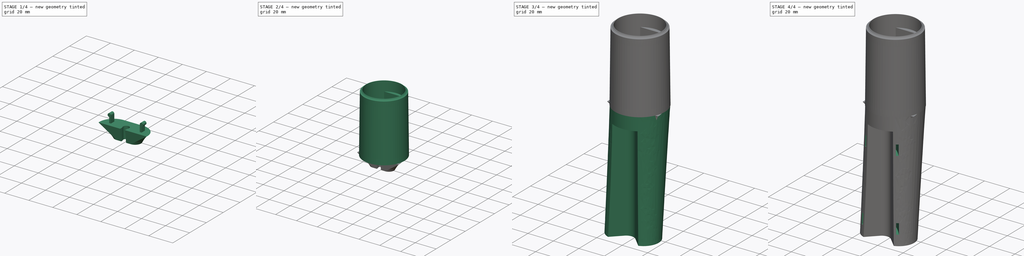
[diagram: build sequence overview — one tinted view per stage of 4, left to right]
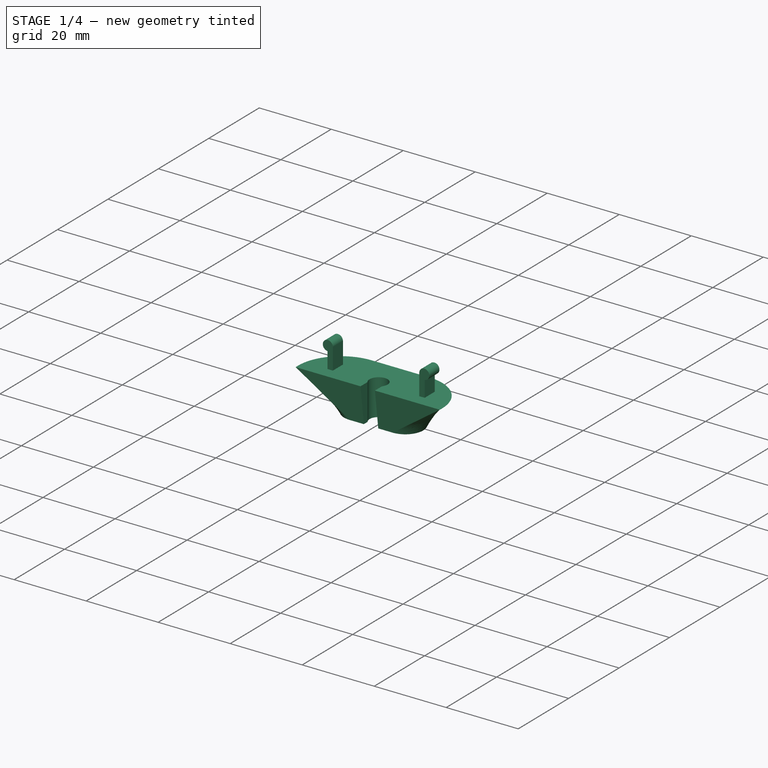
[diagram: stage 1 of 4 — iso view after this stage's code; geometry added in this stage tinted green]
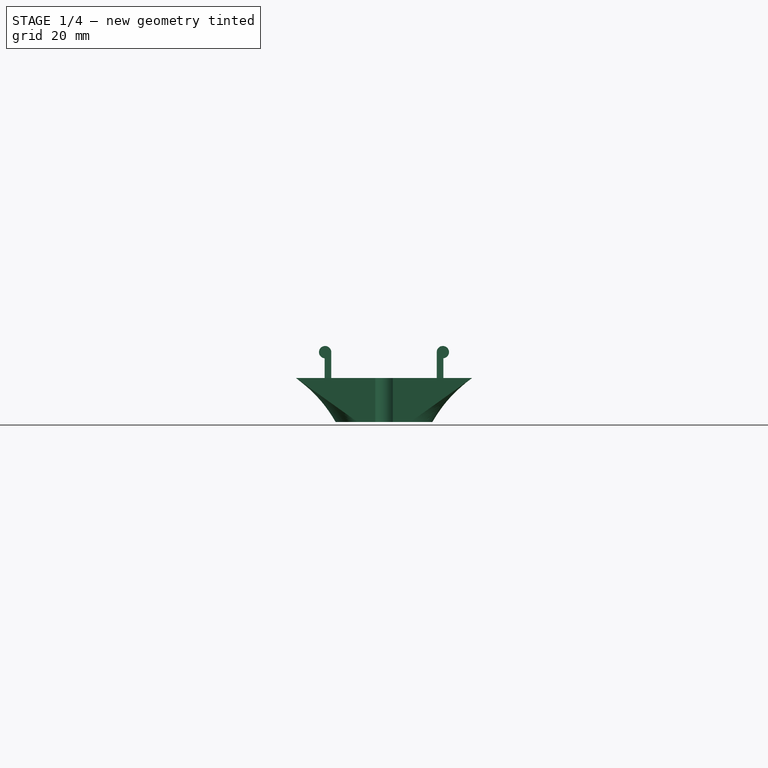
[diagram: stage 1 of 4 — front view after this stage's code; geometry added in this stage tinted green]
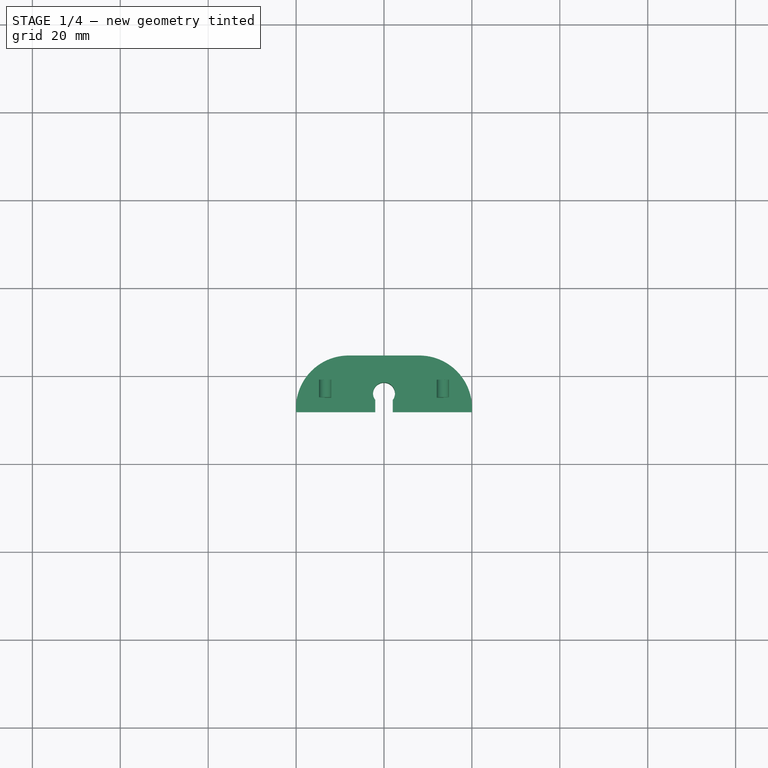
[diagram: stage 1 of 4 — top view after this stage's code; geometry added in this stage tinted green]
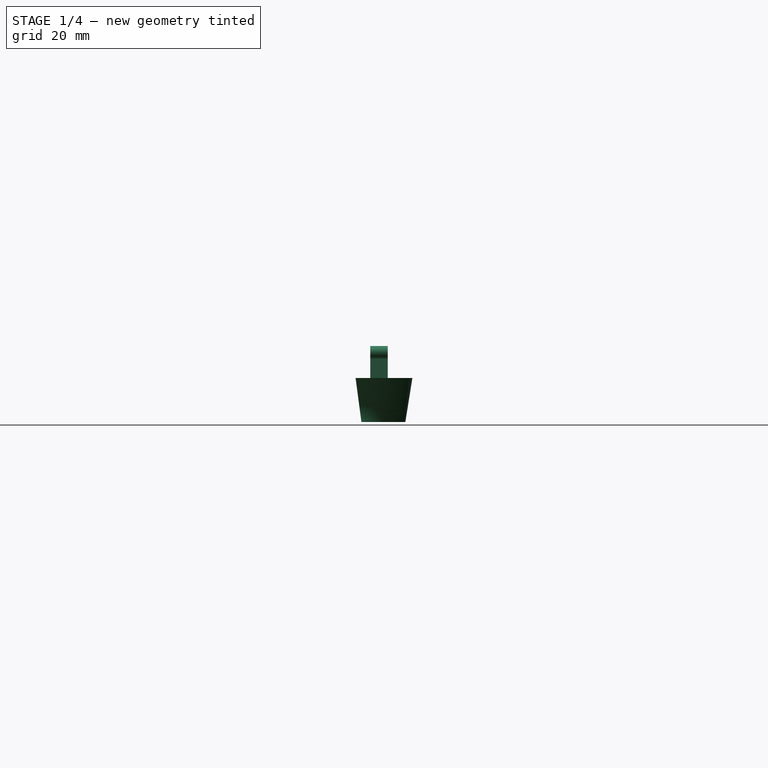
[diagram: stage 1 of 4 — right view after this stage's code; geometry added in this stage tinted green]
FCSTD DOCUMENT  (FreeCAD 1.1R20260414 (Git shallow))
Label: side-mast-mount
License: All rights reserved
LicenseURL: https://en.wikipedia.org/wiki/All_rights_reserved
objects: Sketcher::SketchObject×16, PartDesign::Pocket×6, PartDesign::Pad×3, App::Point×2, PartDesign::AdditiveLoft×2, PartDesign::Body×2, PartDesign::Revolution×1, App::VarSet×1, PartDesign::SubtractivePipe×1
note: 73 computed .brp shape members not serialized (recipe doc carries the construction recipe); baked Part::Feature solids carry a one-line shape summary decoded from their .brp

FEATURE [PartDesign::Body] Body021  label="1-side-mast-mount"
  AllowCompound = false
  Group = -> [Sketch102,Revolution020,Pad002,Pocket002,Pocket053,Sketch141,Sketch148,Sketch149,VarSet,Sketch,Sketch150,AdditiveLoft,Sketch152,Sketch153,Pocket055,Pocket,Sketch155,Sketch156,SubtractivePipe,Sketch158,Pad,Sketch160,Pocket058]
  Origin = -> Origin028
  Tip = -> Pocket058
FEATURE [App::Point] Origin039  label="Origin030"
  Role = Origin
FEATURE [Sketcher::SketchObject] Sketch161
  ArcFitTolerance = 1e-06
  AttachmentSupport = -> [Origin]
  ExternalTypes = [0]
  FullyConstrained = true
  MakeInternals = false
  MapMode = 5
  _ExternalGeoVersion = 1
  sketch-geometry (6):
    g0: ArcOfCircle CenterX=-8.03532 CenterY=-7.4 CenterZ=0 NormalX=0 NormalY=0 NormalZ=1 AngleXU=0 Radius=12 StartAngle=1.5708 EndAngle=3.21833
    g1: LineSegment StartX=-8.03532 StartY=4.6 StartZ=0 EndX=8.03532 EndY=4.6 EndZ=0
    g2: ArcOfCircle CenterX=8.03532 CenterY=-7.4 CenterZ=0 NormalX=0 NormalY=0 NormalZ=1 AngleXU=0 Radius=12 StartAngle=6.20644 EndAngle=7.85398
    g3: LineSegment [constr] StartX=-8.03532 StartY=-7.4 StartZ=0 EndX=0 EndY=-7.4 EndZ=0
    g4: LineSegment [constr] StartX=8.03532 StartY=-7.4 StartZ=0 EndX=0 EndY=-7.4 EndZ=0
    g5: LineSegment StartX=-20 StartY=-8.32 StartZ=0 EndX=20 EndY=-8.32 EndZ=0
  constraints (18):
    c: Tangent(g0,g1) = 1.5708
    c: Coincident(g2,g1)
    c: Horizontal(g1)
    c: Coincident(g3,g0)
    c: PointOnObject(g3,g-2)
    c: Horizontal(g3)
    c: Coincident(g4,g2)
    c: Coincident(g4,g3)
    c: Horizontal(g4)
    c: Equal(g4,g3)
    c: Radius(g0) = 12
    c: Equal(g2,g0)
    c: Coincident(g5,g0)
    c: Coincident(g5,g2)
    c: Horizontal(g5)
    c: Distance(g0,g-1) = 4.6
    c: DistanceY(g0,g-1) = 8.32
    c: DistanceX(g5,g5) = 40
FEATURE [Sketcher::SketchObject] Sketch162
  ArcFitTolerance = 1e-06
  AttachmentOffset = pos=(0,0,-10) rot=(0,0,1;0rad)
  AttachmentSupport = -> [Origin]
  ExternalTypes = [0]
  FullyConstrained = true
  MakeInternals = false
  MapMode = 5
  Placement = pos=(0,0,-10) rot=(0,0,1;0rad)
  _ExternalGeoVersion = 1
  sketch-geometry (6):
    g0: ArcOfCircle CenterX=-6 CenterY=-2 CenterZ=0 NormalX=0 NormalY=0 NormalZ=1 AngleXU=0 Radius=5 StartAngle=1.5708 EndAngle=4.71239
    g1: ArcOfCircle CenterX=6 CenterY=-2 CenterZ=0 NormalX=0 NormalY=0 NormalZ=1 AngleXU=0 Radius=5 StartAngle=4.71239 EndAngle=7.85398
    g2: LineSegment StartX=-6 StartY=3 StartZ=0 EndX=6 EndY=3 EndZ=0
    g3: LineSegment StartX=-6 StartY=-7 StartZ=0 EndX=6 EndY=-7 EndZ=0
    g4: LineSegment [constr] StartX=6 StartY=-2 StartZ=0 EndX=0 EndY=-2 EndZ=0
    g5: LineSegment [constr] StartX=0 StartY=-2 StartZ=0 EndX=-6 EndY=-2 EndZ=0
  constraints (15):
    c: Tangent(g0,g2) = 1.5708
    c: Tangent(g0,g3) = -1.5708
    c: Tangent(g1,g2) = 1.5708
    c: Tangent(g1,g3) = -1.5708
    c: Equal(g0,g1)
    c: Horizontal(g2)
    c: Coincident(g4,g1)
    c: PointOnObject(g4,g-2)
    c: Coincident(g5,g4)
    c: Coincident(g5,g0)
    c: Horizontal(g4)
    c: Equal(g5,g4)
    c: Radius(g1) = 5
    c: DistanceX(g2,g2) = 12
    c: Distance(g4,g-1) = 2
FEATURE [PartDesign::AdditiveLoft] AdditiveLoft001
  Closed = false
  Profile = -> Sketch161
  Refine = true
  Ruled = false
  Sections = -> [Sketch162]
  Suppressed = false
FEATURE [Sketcher::SketchObject] Sketch163
  ArcFitTolerance = 1e-06
  AttachmentOffset = pos=(0,0,3) rot=(0,0,1;0rad)
  AttachmentSupport = -> [Origin]
  ExternalTypes = [0]
  FullyConstrained = true
  MakeInternals = false
  MapMode = 5
  Placement = pos=(0,-3,7e-16) rot=(1,0,0;1.5708rad)
  _ExternalGeoVersion = 1
  sketch-geometry (10):
    g0: LineSegment StartX=-12 StartY=0 StartZ=0 EndX=-12 EndY=6 EndZ=0
    g1: ArcOfCircle CenterX=-13.3961 CenterY=5.89614 CenterZ=0 NormalX=0 NormalY=0 NormalZ=1 AngleXU=0 Radius=1.4 StartAngle=0.0742522 EndAngle=4.63814
    g2: LineSegment StartX=-13.5 StartY=4.5 StartZ=0 EndX=-13.5 EndY=0 EndZ=0
    g3: LineSegment StartX=-13.5 StartY=0 StartZ=0 EndX=-12 EndY=0 EndZ=0
    g4: LineSegment StartX=12 StartY=0 StartZ=0 EndX=12 EndY=6 EndZ=0
    g5: ArcOfCircle CenterX=13.3961 CenterY=5.89614 CenterZ=0 NormalX=0 NormalY=0 NormalZ=1 AngleXU=0 Radius=1.4 StartAngle=4.78664 EndAngle=9.35053
    g6: LineSegment StartX=13.5 StartY=4.5 StartZ=0 EndX=13.5 EndY=0 EndZ=0
    g7: LineSegment StartX=13.5 StartY=0 StartZ=0 EndX=12 EndY=0 EndZ=0
    g8: LineSegment [constr] StartX=-12 StartY=0 StartZ=0 EndX=0 EndY=0 EndZ=0
    g9: LineSegment [constr] StartX=0 StartY=0 StartZ=0 EndX=12 EndY=0 EndZ=0
  constraints (30):
    c: PointOnObject(g0,g-1)
    c: Vertical(g0)
    c: Coincident(g2,g1)
    c: PointOnObject(g2,g-1)
    c: Vertical(g2)
    c: Coincident(g3,g2)
    c: Coincident(g3,g0)
    c: Distance(g0,g-2) = 12
    c: DistanceX(g3,g3) = 1.5
    c: Coincident(g0,g1)
    c: Radius(g1) = 1.4
    c: Distance(g2,g2) = 4.5
    c: DistanceY(g0,g0) = 6
    c: Vertical(g4)
    c: Coincident(g6,g5)
    c: Vertical(g6)
    c: Coincident(g7,g6)
    c: Coincident(g7,g4)
    c: Coincident(g4,g5)
    c: Radius(g5) = 1.4
    c: Distance(g6,g6) = 4.5
    c: Coincident(g8,g0)
    c: Coincident(g8,g-1)
    c: Coincident(g9,g8)
    c: Coincident(g9,g4)
    c: Horizontal(g9)
    c: Equal(g9,g8)
    c: Equal(g4,g0)
    c: Equal(g3,g7)
    c: PointOnObject(g6,g-1)
FEATURE [PartDesign::Pad] Pad003
  BaseFeature = -> AdditiveLoft001
  Direction = (0,-1,2e-16)
  Length = 4
  Length2 = 10
  Profile = -> Sketch163
  ReferenceAxis = -> Sketch163 [N_Axis]
  Refine = true
  SideType = 2
  Suppressed = false
  Type = 0
  Type2 = 0
FEATURE [Sketcher::SketchObject] Sketch164
  ArcFitTolerance = 1e-06
  AttachmentSupport = -> [Pad003]
  ExternalTypes = [0]
  FullyConstrained = true
  MakeInternals = false
  MapMode = 5
  Placement = pos=(0,0,-10) rot=(1,0,0;3.14159rad)
  _ExternalGeoVersion = 1
  sketch-geometry (5):
    g0: LineSegment StartX=0 StartY=13.5 StartZ=0 EndX=2 EndY=13.5 EndZ=0
    g1: LineSegment StartX=0 StartY=13.5 StartZ=0 EndX=-2 EndY=13.5 EndZ=0
    g2: LineSegment StartX=-2 StartY=13.5 StartZ=0 EndX=-2 EndY=5.5 EndZ=0
    g3: LineSegment StartX=2 StartY=5.5 StartZ=0 EndX=2 EndY=13.5 EndZ=0
    g4: ArcOfCircle CenterX=0 CenterY=4 CenterZ=0 NormalX=0 NormalY=0 NormalZ=1 AngleXU=0 Radius=2.5 StartAngle=2.49809 EndAngle=6.92669
  constraints (16):
    c: PointOnObject(g0,g-2)
    c: Horizontal(g0)
    c: Coincident(g1,g0)
    c: Horizontal(g1)
    c: Equal(g0,g1)
    c: DistanceX(g1,g0) = 4
    c: Coincident(g2,g1)
    c: Coincident(g3,g0)
    c: Vertical(g2)
    c: Vertical(g3)
    c: DistanceY(g3,g3) = 8
    c: PointOnObject(g4,g-2)
    c: Coincident(g4,g3)
    c: Coincident(g4,g2)
    c: Radius(g4) = 2.5
    c: Distance(g4,g-1) = 4
FEATURE [PartDesign::Pocket] Pocket059
  BaseFeature = -> Pad003
  Direction = (0,0,1)
  Length = 14
  Length2 = 5
  Profile = -> Sketch164
  ReferenceAxis = -> Sketch164 [N_Axis]
  Refine = true
  SideType = 0
  Suppressed = false
  Type = 0
  Type2 = 0
FEATURE [PartDesign::Body] Body  label="2-bottom-pass through"
  AllowCompound = false
  Group = -> [Sketch161,Sketch162,AdditiveLoft001,Sketch163,Pad003,Sketch164,Pocket059]
  Origin = -> Origin
  Placement = pos=(0,0,-106) rot=(0,0,1;0rad)
  Tip = -> Pocket059
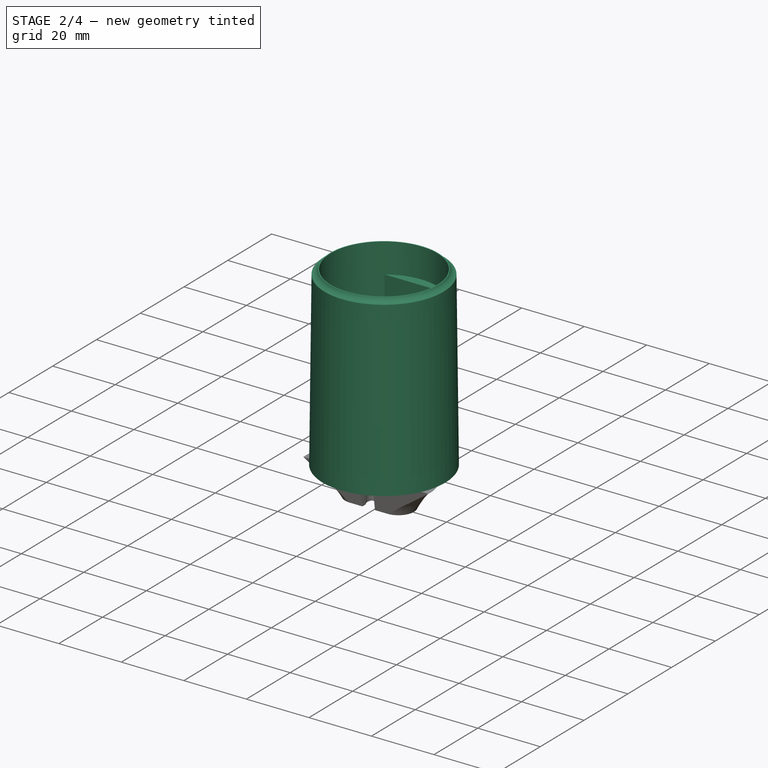
[diagram: stage 2 of 4 — iso view after this stage's code; geometry added in this stage tinted green]
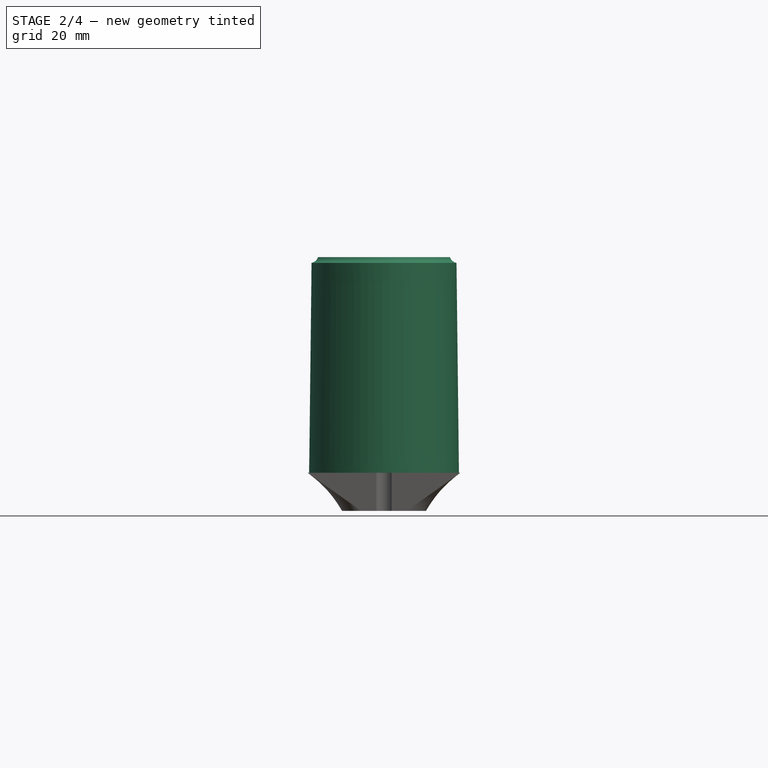
[diagram: stage 2 of 4 — front view after this stage's code; geometry added in this stage tinted green]
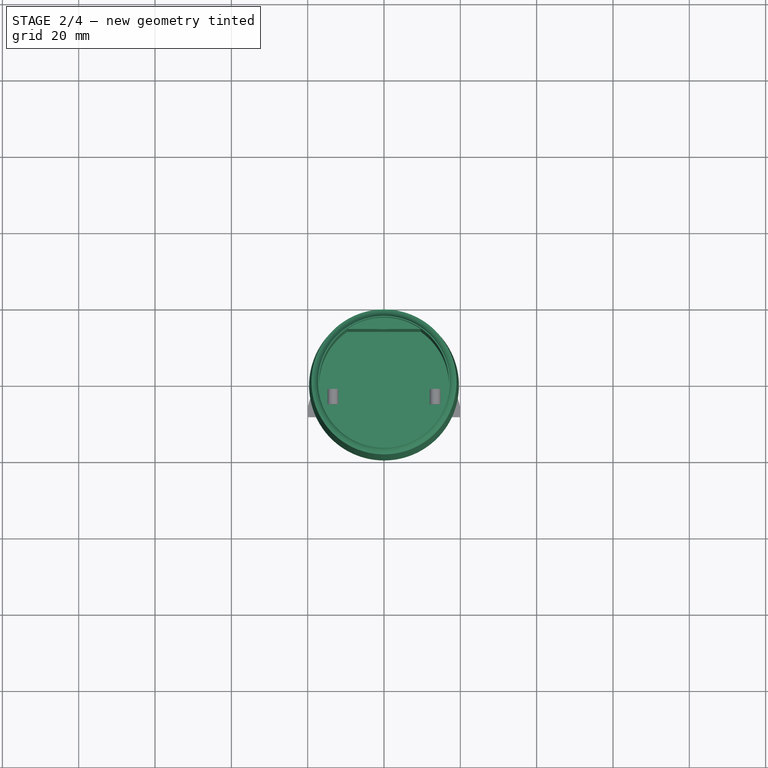
[diagram: stage 2 of 4 — top view after this stage's code; geometry added in this stage tinted green]
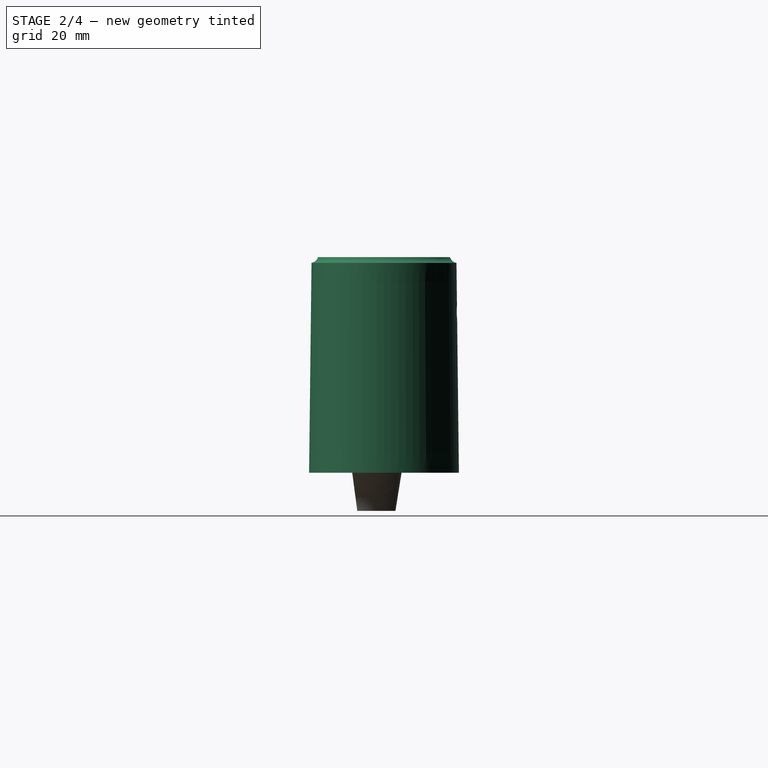
[diagram: stage 2 of 4 — right view after this stage's code; geometry added in this stage tinted green]
FEATURE [App::Point] Origin038  label="Origin"
  Role = Origin
FEATURE [Sketcher::SketchObject] Sketch
  ArcFitTolerance = 1e-06
  AttachmentSupport = -> [Origin028]
  ExternalTypes = [0]
  FullyConstrained = true
  MakeInternals = false
  MapMode = 5
  _ExternalGeoVersion = 1
  sketch-geometry (1):
    g0: Circle CenterX=0 CenterY=0 CenterZ=0 NormalX=0 NormalY=0 NormalZ=1 AngleXU=0 Radius=19.5
  constraints (2):
    c: Diameter(g0) = 39
    c: Coincident(g0,g-1)
FEATURE [Sketcher::SketchObject] Sketch102
  ArcFitTolerance = 1e-06
  AttachmentSupport = -> [XZ_Plane028]
  ExternalTypes = [0]
  FullyConstrained = true
  MakeInternals = false
  MapMode = 5
  Placement = pos=(0,0,0) rot=(1,0,0;1.5708rad)
  _ExternalGeoVersion = 0
  expr: Constraints[5] = <<Mast Mount Dimensions>>.Receptacle_Internal_Length
  sketch-geometry (10):
    g0: LineSegment StartX=0 StartY=3 StartZ=0 EndX=17 EndY=3 EndZ=0
    g1: LineSegment [constr] StartX=17 StartY=3 StartZ=0 EndX=19.6 EndY=3 EndZ=0
    g2: LineSegment StartX=17 StartY=3 StartZ=0 EndX=17 EndY=54.9965 EndZ=0
    g3: LineSegment [constr] StartX=17 StartY=54.9965 StartZ=0 EndX=19 EndY=54.9965 EndZ=0
    g4: LineSegment StartX=19.6346 StartY=0 StartZ=0 EndX=19 EndY=54.9965 EndZ=0
    g5: LineSegment StartX=17 StartY=54.9965 StartZ=0 EndX=17 EndY=56.4965 EndZ=0
    g6: LineSegment StartX=17 StartY=56.4965 StartZ=0 EndX=17.3 EndY=56.4965 EndZ=0
    g7: LineSegment StartX=0 StartY=3 StartZ=0 EndX=0 EndY=0 EndZ=0
    g8: LineSegment StartX=0 StartY=0 StartZ=0 EndX=19.6346 EndY=0 EndZ=0
    g9: ArcOfCircle CenterX=19.3975 CenterY=57.1603 CenterZ=0 NormalX=0 NormalY=0 NormalZ=1 AngleXU=0 Radius=2.2 StartAngle=3.4481 EndAngle=4.53072
  constraints (30):
    c: Coincident(g1,g0)
    c: Horizontal(g1)
    c: Horizontal(g0)
    c: Coincident(g2,g0)
    c: Vertical(g2)
    c: Distance(g4,g1) = 52
    c: Coincident(g3,g2)
    c: Horizontal(g3)
    c: Vertical(g5)
    c: Coincident(g5,g2)
    c: Coincident(g3,g4)
    c: Coincident(g6,g5)
    c: Horizontal(g6)
    c: Distance(g6,g6) = 0.3
    c: DistanceX(g3,g3) = 2
    c: Distance(g1,g-2) = 19.6
    c: Distance(g0,g-2) = 17
    c: PointOnObject(g4,g-1)
    c: Coincident(g7,g0)
    c: Vertical(g7)
    c: PointOnObject(g7,g-1)
    c: Coincident(g8,g7)
    c: Coincident(g8,g4)
    c: DistanceY(g7,g7) = 3
    c: PointOnObject(g1,g4)
    c: Coincident(g9,g6)
    c: Coincident(g9,g3)
    c: Radius(g9) = 2.2
    c: PointOnObject(g0,g-2)
    c: DistanceY(g5,g5) = 1.5
FEATURE [PartDesign::Revolution] Revolution020  label="Receptacle"
  Angle = 360
  Angle2 = 60
  Axis = (0,2e-16,1)
  Base = (0,0,0)
  FuseOrder = 1
  Placement = pos=(0,0,0) rot=(1,0,0;1.5708rad)
  Profile = -> Sketch102
  ReferenceAxis = -> Sketch102 [V_Axis]
  Reversed = true
  Suppressed = false
  Type = 0
FEATURE [Sketcher::SketchObject] Sketch141
  ArcFitTolerance = 1e-06
  AttachmentOffset = pos=(0,0,0) rot=(0,0,1;4.71239rad)
  AttachmentSupport = -> [XY_Plane028]
  ExternalTypes = [0]
  FullyConstrained = true
  MakeInternals = false
  MapMode = 2
  Placement = pos=(0,0,0) rot=(0,0,1;4.71239rad)
  _ExternalGeoVersion = 0
  sketch-geometry (4):
    g0: LineSegment [constr] StartX=0 StartY=0 StartZ=0 EndX=-14 EndY=0 EndZ=0
    g1: LineSegment StartX=-14 StartY=0 StartZ=0 EndX=-14 EndY=12.8452 EndZ=0
    g2: LineSegment StartX=-14 StartY=0 StartZ=0 EndX=-14 EndY=-12.8452 EndZ=0
    g3: ArcOfCircle CenterX=0 CenterY=0 CenterZ=0 NormalX=0 NormalY=0 NormalZ=1 AngleXU=0 Radius=19 StartAngle=2.39918 EndAngle=3.884
  constraints (11):
    c: Distance(g0) = 14
    c: Coincident(g0,g-1)
    c: PointOnObject(g0,g-1)
    c: Coincident(g1,g0)
    c: Vertical(g1)
    c: Coincident(g2,g0)
    c: Vertical(g2)
    c: Coincident(g3,g0)
    c: Coincident(g3,g1)
    c: Coincident(g3,g2)
    c: Radius(g3) = 19
FEATURE [PartDesign::Pad] Pad002  label="Receptacle-keying"
  BaseFeature = -> Revolution020
  Direction = (0,0,1)
  Length = 47
  Length2 = 10
  Placement = pos=(0,0,0) rot=(1,0,0;1.5708rad)
  Profile = -> Sketch141
  ReferenceAxis = -> Sketch141 [N_Axis]
  SideType = 0
  Suppressed = false
  Type = 0
  Type2 = 0
  expr: Length = <<Mast Mount Dimensions>>.Receptacle_Internal_Length - 5 mm
FEATURE [Sketcher::SketchObject] Sketch148
  ArcFitTolerance = 1e-06
  AttachmentOffset = pos=(0,0,-20) rot=(0,0,1;0rad)
  AttachmentSupport = -> [XZ_Plane028]
  ExternalTypes = [0]
  FullyConstrained = true
  MakeInternals = false
  MapMode = 5
  Placement = pos=(0,20,-4.4e-15) rot=(1,0,0;1.5708rad)
  _ExternalGeoVersion = 0
  expr: Constraints[2] = <<Mast Mount Dimensions>>.Receptacle_Internal_Length - 10 mm
  sketch-geometry (1):
    g0: Circle CenterX=0 CenterY=42 CenterZ=0 NormalX=0 NormalY=0 NormalZ=1 AngleXU=0 Radius=1.9
  constraints (3):
    c: Diameter(g0) = 3.8
    c: PointOnObject(g0,g-2)
    c: Distance(g0,g-1) = 42
FEATURE [PartDesign::Pocket] Pocket002  label="Receptacle Screw Hole"
  BaseFeature = -> Pad002
  Direction = (0,1,-2e-16)
  Length = 10
  Length2 = 5
  Placement = pos=(0,0,0) rot=(1,0,0;1.5708rad)
  Profile = -> Sketch148
  ReferenceAxis = -> Sketch148 [N_Axis]
  Reversed = true
  SideType = 0
  Suppressed = false
  Type = 0
  Type2 = 0
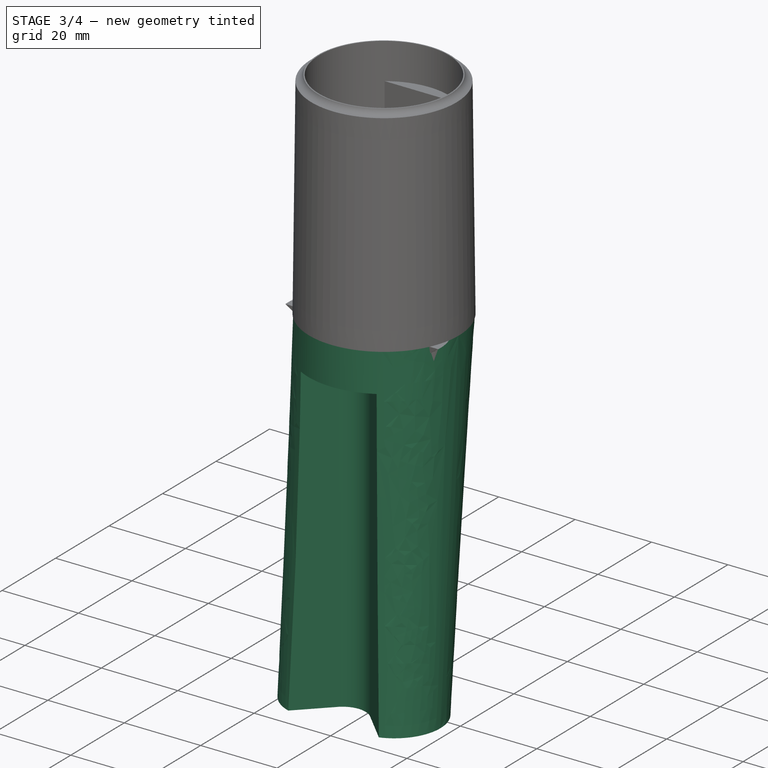
[diagram: stage 3 of 4 — iso view after this stage's code; geometry added in this stage tinted green]
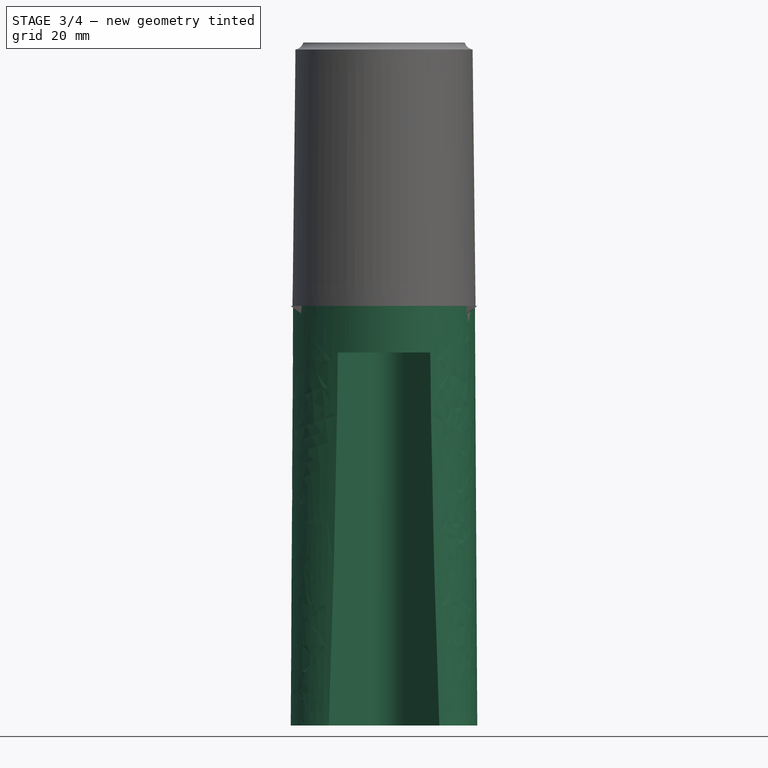
[diagram: stage 3 of 4 — front view after this stage's code; geometry added in this stage tinted green]
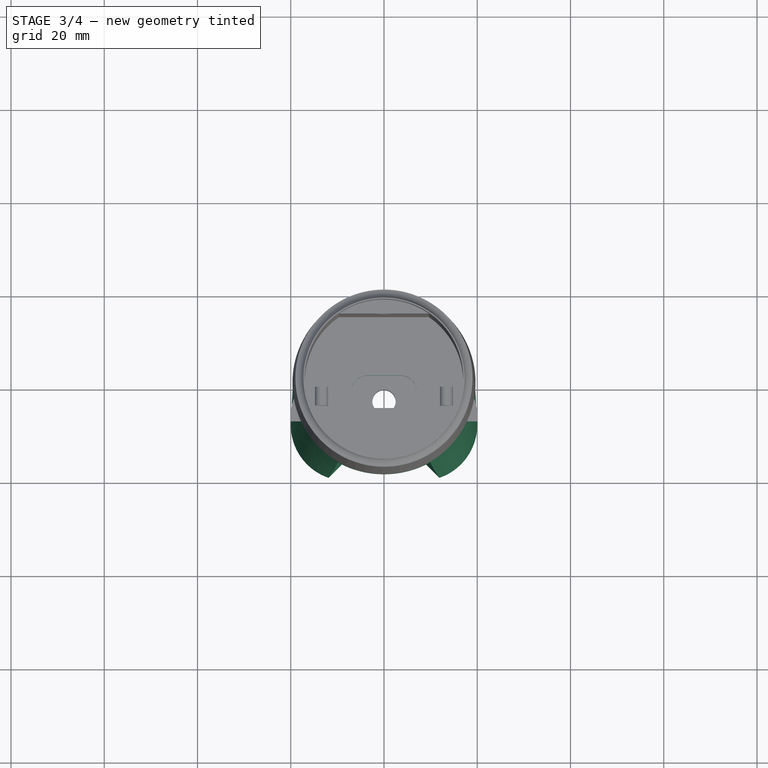
[diagram: stage 3 of 4 — top view after this stage's code; geometry added in this stage tinted green]
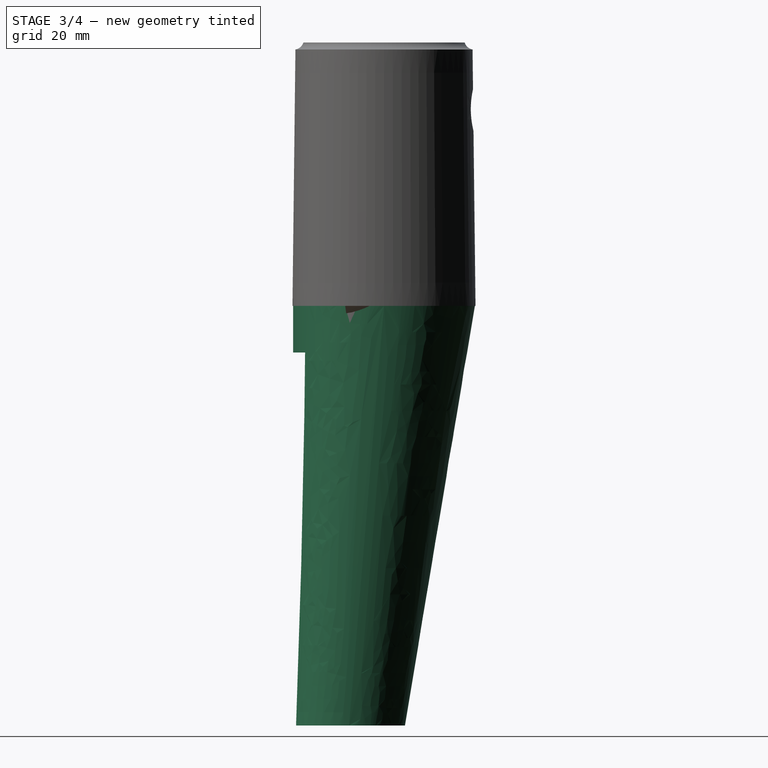
[diagram: stage 3 of 4 — right view after this stage's code; geometry added in this stage tinted green]
FEATURE [Sketcher::SketchObject] Sketch149
  ArcFitTolerance = 1e-06
  AttachmentOffset = pos=(0,0,-20) rot=(0,0,1;0rad)
  AttachmentSupport = -> [XZ_Plane028]
  ExternalGeometry = -> [Sketch148]
  ExternalTypes = [0]
  FullyConstrained = true
  MakeInternals = false
  MapMode = 5
  Placement = pos=(0,20,-4.4e-15) rot=(1,0,0;1.5708rad)
  _ExternalGeoVersion = 0
  sketch-geometry (1):
    g0: Circle CenterX=0 CenterY=42 CenterZ=0 NormalX=0 NormalY=0 NormalZ=1 AngleXU=0 Radius=4.5
  constraints (2):
    c: Diameter(g0) = 9
    c: Coincident(g0,g-3)
FEATURE [PartDesign::Pocket] Pocket053  label="Receptacle Screw Bore"
  BaseFeature = -> Pocket002
  Direction = (0,1,-2e-16)
  Length = 3
  Length2 = 5
  Placement = pos=(0,0,0) rot=(1,0,0;1.5708rad)
  Profile = -> Sketch149 [Edge1]
  ReferenceAxis = -> Sketch149 [N_Axis]
  Reversed = true
  SideType = 0
  Suppressed = false
  Type = 0
  Type2 = 0
FEATURE [Sketcher::SketchObject] Sketch150
  ArcFitTolerance = 1e-06
  AttachmentOffset = pos=(0,0,-90) rot=(0,0,1;0rad)
  AttachmentSupport = -> [Origin028]
  ExternalTypes = [0]
  FullyConstrained = true
  MakeInternals = false
  MapMode = 5
  Placement = pos=(0,0,-90) rot=(0,0,1;0rad)
  _ExternalGeoVersion = 1
  sketch-geometry (5):
    g0: ArcOfCircle CenterX=-8 CenterY=-7.5 CenterZ=0 NormalX=0 NormalY=0 NormalZ=1 AngleXU=0 Radius=12 StartAngle=1.5708 EndAngle=4.71239
    g1: ArcOfCircle CenterX=8 CenterY=-7.5 CenterZ=0 NormalX=0 NormalY=0 NormalZ=1 AngleXU=0 Radius=12 StartAngle=4.71239 EndAngle=7.85398
    g2: LineSegment StartX=-8 StartY=4.5 StartZ=0 EndX=8 EndY=4.5 EndZ=0
    g3: LineSegment StartX=-8 StartY=-19.5 StartZ=0 EndX=0 EndY=-19.5 EndZ=0
    g4: LineSegment StartX=0 StartY=-19.5 StartZ=0 EndX=8 EndY=-19.5 EndZ=0
  constraints (14):
    c: Tangent(g0,g2) = 1.5708
    c: Tangent(g1,g2) = 1.5708
    c: Equal(g0,g1)
    c: Horizontal(g2)
    c: Coincident(g3,g0)
    c: PointOnObject(g3,g-2)
    c: Horizontal(g3)
    c: Coincident(g4,g3)
    c: Tangent(g4,g1) = -1.5708
    c: Horizontal(g4)
    c: Equal(g4,g3)
    c: Radius(g1) = 12
    c: DistanceX(g0,g1) = 16
    c: DistanceY(g3,g-1) = 19.5
FEATURE [PartDesign::AdditiveLoft] AdditiveLoft  label="loft-main"
  BaseFeature = -> Pocket053
  Closed = false
  Placement = pos=(0,0,0) rot=(1,0,0;1.5708rad)
  Profile = -> Sketch150
  Refine = true
  Ruled = false
  Sections = -> [Sketch]
  Suppressed = false
FEATURE [Sketcher::SketchObject] Sketch152
  ArcFitTolerance = 1e-06
  AttachmentOffset = pos=(0,0,-90) rot=(0,0,1;0rad)
  AttachmentSupport = -> [Origin028]
  ExternalTypes = [0]
  FullyConstrained = true
  MakeInternals = false
  MapMode = 5
  Placement = pos=(0,0,-90) rot=(0,0,1;0rad)
  _ExternalGeoVersion = 1
  sketch-geometry (5):
    g0: LineSegment StartX=-4.24264 StartY=-11.2426 StartZ=0 EndX=-15.64 EndY=-22.64 EndZ=0
    g1: LineSegment StartX=4.24264 StartY=-11.2426 StartZ=0 EndX=15.64 EndY=-22.64 EndZ=0
    g2: ArcOfCircle CenterX=0 CenterY=-15.4853 CenterZ=0 NormalX=0 NormalY=0 NormalZ=1 AngleXU=0 Radius=6 StartAngle=0.785398 EndAngle=2.35619
    g3: GeomPoint [constr] X=0 Y=-7 Z=0
    g4: LineSegment StartX=-15.64 StartY=-22.64 StartZ=0 EndX=15.64 EndY=-22.64 EndZ=0
  constraints (13):
    c: PointOnObject(g3,g-2)
    c: PointOnObject(g3,g0)
    c: PointOnObject(g3,g1)
    c: Tangent(g0,g2) = -1.5708
    c: Tangent(g1,g2) = 1.5708
    c: Distance(g3,g-1) = 7
    c: Coincident(g4,g0)
    c: Coincident(g4,g1)
    c: Horizontal(g4)
    c: PointOnObject(g2,g-2)
    c: Angle(g0,g1) = 1.5708
    c: Radius(g2) = 6
    c: DistanceX(g4,g4) = 31.28
FEATURE [Sketcher::SketchObject] Sketch153
  ArcFitTolerance = 1e-06
  AttachmentOffset = pos=(0,0,5) rot=(0,0,1;0rad)
  AttachmentSupport = -> [Origin028]
  ExternalTypes = [0]
  FullyConstrained = true
  MakeInternals = false
  MapMode = 5
  Placement = pos=(0,0,5) rot=(0,0,1;0rad)
  _ExternalGeoVersion = 1
  sketch-geometry (6):
    g0: ArcOfCircle CenterX=-3.5 CenterY=-2 CenterZ=0 NormalX=0 NormalY=0 NormalZ=1 AngleXU=0 Radius=3.5 StartAngle=1.5708 EndAngle=4.71239
    g1: ArcOfCircle CenterX=3.5 CenterY=-2 CenterZ=0 NormalX=0 NormalY=0 NormalZ=1 AngleXU=0 Radius=3.5 StartAngle=4.71239 EndAngle=7.85398
    g2: LineSegment StartX=-3.5 StartY=1.5 StartZ=0 EndX=3.5 EndY=1.5 EndZ=0
    g3: LineSegment StartX=-3.5 StartY=-5.5 StartZ=0 EndX=3.5 EndY=-5.5 EndZ=0
    g4: LineSegment [constr] StartX=-3.5 StartY=-2 StartZ=0 EndX=0 EndY=-2 EndZ=0
    g5: LineSegment [constr] StartX=0 StartY=-2 StartZ=0 EndX=3.5 EndY=-2 EndZ=0
  constraints (15):
    c: Tangent(g0,g2) = 1.5708
    c: Tangent(g0,g3) = -1.5708
    c: Tangent(g1,g2) = 1.5708
    c: Tangent(g1,g3) = -1.5708
    c: Equal(g0,g1)
    c: Radius(g0) = 3.5
    c: DistanceX(g2,g2) = 7
    c: Coincident(g4,g0)
    c: PointOnObject(g4,g-2)
    c: Horizontal(g4)
    c: Coincident(g5,g4)
    c: Coincident(g5,g1)
    c: Horizontal(g5)
    c: Equal(g5,g4)
    c: Distance(g4,g-1) = 2
FEATURE [PartDesign::Pocket] Pocket055  label="pocket-cable-conduit"
  BaseFeature = -> AdditiveLoft
  Direction = (0,0,-1)
  Length = 5
  Length2 = 5
  Placement = pos=(0,0,0) rot=(1,0,0;1.5708rad)
  Profile = -> Sketch153
  ReferenceAxis = -> Sketch153 [N_Axis]
  Refine = true
  SideType = 0
  Suppressed = false
  Type = 1
  Type2 = 0
FEATURE [App::VarSet] VarSet  label="Mast Mount Dimensions"
  Receptacle_Internal_Length = 52
  Zip_Ties_Thickness = 1.8
FEATURE [PartDesign::Pocket] Pocket  label="pocket-v-groove"
  BaseFeature = -> Pocket055
  Direction = (0,0,-1)
  Length = 80
  Length2 = 5
  Placement = pos=(0,0,0) rot=(1,0,0;1.5708rad)
  Profile = -> Sketch152
  ReferenceAxis = -> Sketch152 [N_Axis]
  Refine = true
  Reversed = true
  SideType = 0
  Suppressed = false
  Type = 0
  Type2 = 0
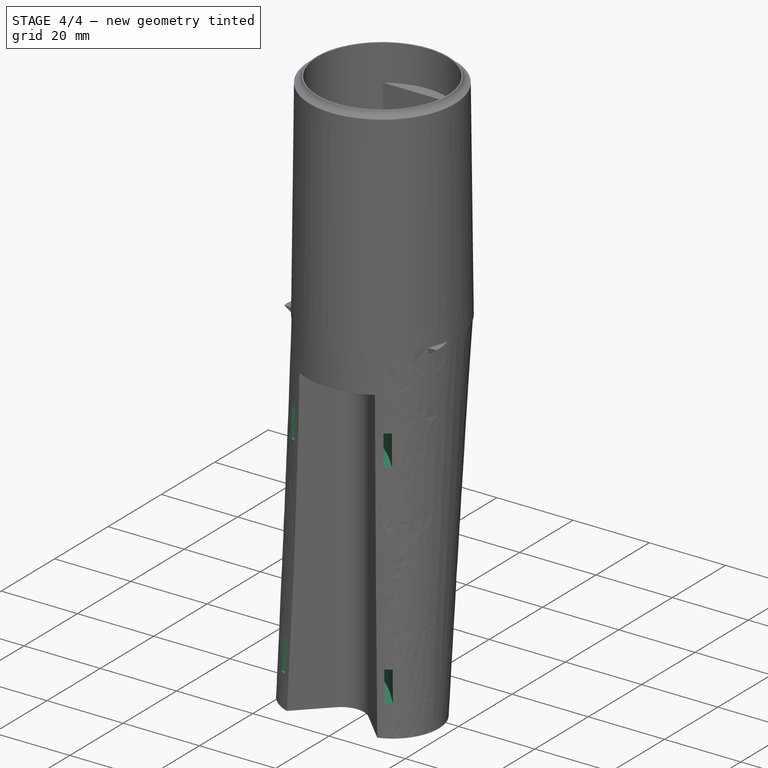
[diagram: stage 4 of 4 — iso view after this stage's code; geometry added in this stage tinted green]
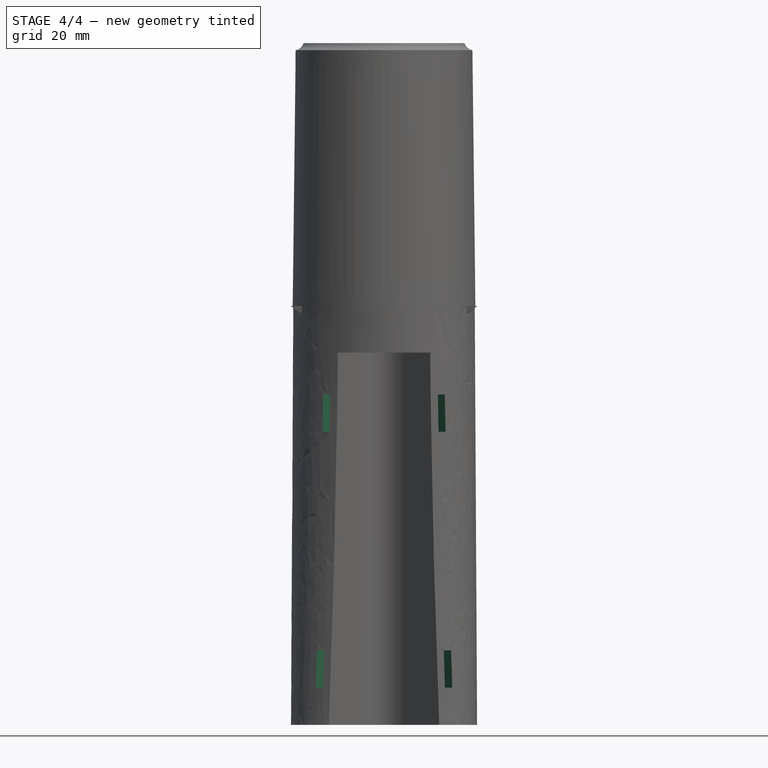
[diagram: stage 4 of 4 — front view after this stage's code; geometry added in this stage tinted green]
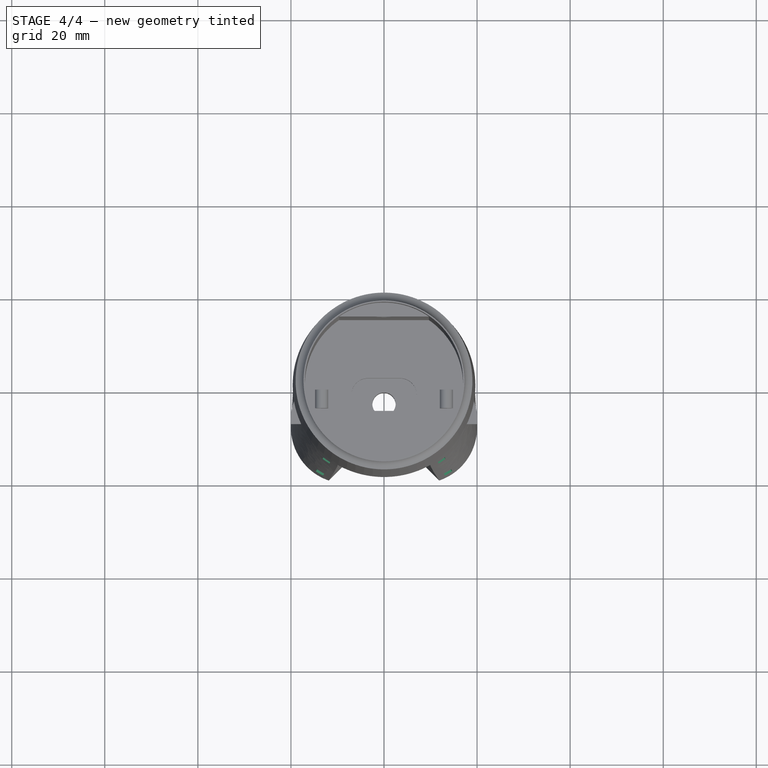
[diagram: stage 4 of 4 — top view after this stage's code; geometry added in this stage tinted green]
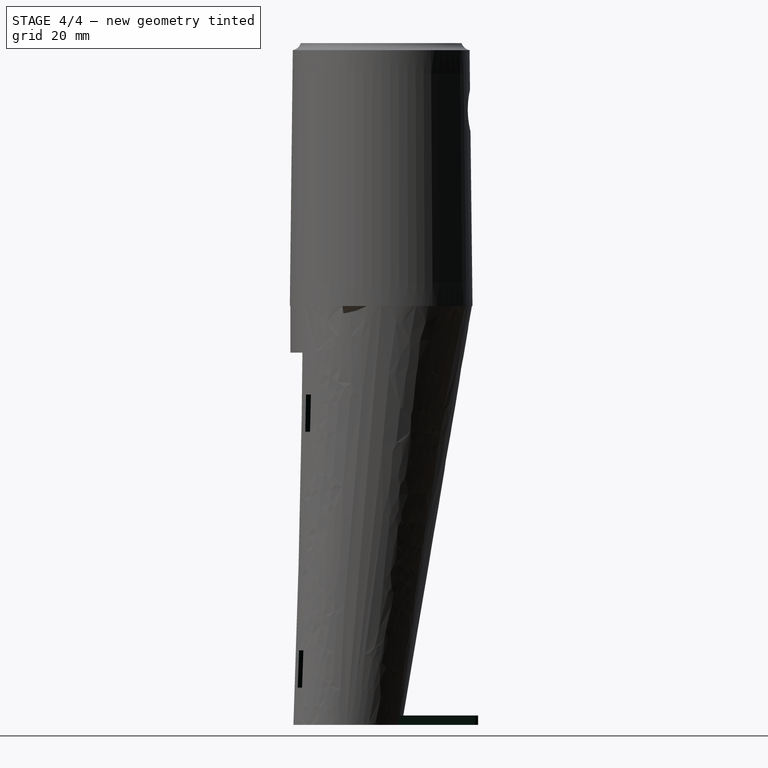
[diagram: stage 4 of 4 — right view after this stage's code; geometry added in this stage tinted green]
FEATURE [Sketcher::SketchObject] Sketch155
  ArcFitTolerance = 1e-06
  AttachmentSupport = -> [Origin028]
  ExternalTypes = [0]
  FullyConstrained = false
  MakeInternals = false
  MapMode = 5
  _ExternalGeoVersion = 1
  sketch-geometry (13):
    g0-g4: Circle [constr] x5 (B-spline internal-alignment scaffolding for g5; pole/knot coordinates omitted)
    g5: BSplineCurve PolesCount=5 KnotsCount=3 Degree=3 IsPeriodic=0
    g6: GeomPoint [constr] X=-20 Y=-25.3167 Z=0
    g7: GeomPoint [constr] X=0 Y=-7 Z=0
    g8: GeomPoint [constr] X=20 Y=-25.3167 Z=0
    g9: LineSegment [constr] StartX=-8.51312 StartY=-9.97781 StartZ=0 EndX=0 EndY=-9.97781 EndZ=0
    g10: LineSegment [constr] StartX=0 StartY=-9.97781 StartZ=0 EndX=8.51312 EndY=-9.97781 EndZ=0
    g11: LineSegment [constr] StartX=-20 StartY=-25.3167 StartZ=0 EndX=0 EndY=-25.3167 EndZ=0
    g12: LineSegment [constr] StartX=0 StartY=-25.3167 StartZ=0 EndX=20 EndY=-25.3167 EndZ=0
  constraints (23):
    c: Weight(g0) = 1
    c: Equal(g0, g1-g4) x4
    c: InternalAlignment(g0-g4 -> g5) x5
    c: InternalAlignment(g6,g5)
    c: InternalAlignment(g7,g5)
    c: InternalAlignment(g8,g5)
    c: PointOnObject(g2,g-2)
    c: PointOnObject(g7,g-2)
    c: Coincident(g9,g1)
    c: PointOnObject(g9,g-2)
    c: Horizontal(g9)
    c: Coincident(g10,g9)
    c: Coincident(g10,g3)
    c: Horizontal(g10)
    c: Coincident(g11,g5)
    c: PointOnObject(g11,g-2)
    c: Horizontal(g11)
    c: Coincident(g12,g11)
    c: Coincident(g12,g5)
    c: Horizontal(g12)
    c: Equal(g11,g12)
    c: DistanceX(g5,g5) = 40
    c: Distance(g7,g-1) = 7
FEATURE [Sketcher::SketchObject] Sketch156
  ArcFitTolerance = 1e-06
  AttachmentOffset = pos=(-7,0,0) rot=(0,0,1;0rad)
  AttachmentSupport = -> [Origin028]
  ExternalTypes = [0]
  FullyConstrained = true
  MakeInternals = false
  MapMode = 5
  Placement = pos=(0,-7,0) rot=(0.57735,0.57735,0.57735;2.0944rad)
  _ExternalGeoVersion = 1
  expr: Constraints[10] = <<Mast Mount Dimensions>>.Zip_Ties_Thickness
  sketch-geometry (10):
    g0: LineSegment StartX=-0.9 StartY=-27 StartZ=0 EndX=0.9 EndY=-27 EndZ=0
    g1: LineSegment StartX=0.9 StartY=-27 StartZ=0 EndX=0.9 EndY=-19 EndZ=0
    g2: LineSegment StartX=0.9 StartY=-19 StartZ=0 EndX=-0.9 EndY=-19 EndZ=0
    g3: LineSegment StartX=-0.9 StartY=-19 StartZ=0 EndX=-0.9 EndY=-27 EndZ=0
    g4: GeomPoint [constr] X=0 Y=-23 Z=0
    g5: LineSegment StartX=-0.9 StartY=-82 StartZ=0 EndX=0.9 EndY=-82 EndZ=0
    g6: LineSegment StartX=0.9 StartY=-82 StartZ=0 EndX=0.9 EndY=-74 EndZ=0
    g7: LineSegment StartX=0.9 StartY=-74 StartZ=0 EndX=-0.9 EndY=-74 EndZ=0
    g8: LineSegment StartX=-0.9 StartY=-74 StartZ=0 EndX=-0.9 EndY=-82 EndZ=0
    g9: GeomPoint [constr] X=0 Y=-78 Z=0
  constraints (26):
    c: Coincident(g0,g1)
    c: Coincident(g1,g2)
    c: Coincident(g2,g3)
    c: Coincident(g3,g0)
    c: Horizontal(g0)
    c: Horizontal(g2)
    c: Vertical(g1)
    c: Vertical(g3)
    c: Symmetric(g2,g0,g4)
    c: PointOnObject(g4,g-2)
    c: Distance(g2,g2) = 1.8
    c: DistanceY(g1,g1) = 8
    c: Coincident(g5,g6)
    c: Coincident(g6,g7)
    c: Coincident(g7,g8)
    c: Coincident(g8,g5)
    c: Horizontal(g5)
    c: Horizontal(g7)
    c: Vertical(g6)
    c: Vertical(g8)
    c: Symmetric(g7,g5,g9)
    c: PointOnObject(g9,g-2)
    c: Equal(g7,g2)
    c: Equal(g1,g6)
    c: Distance(g4,g-1) = 23
    c: Distance(g9,g-1) = 78
FEATURE [PartDesign::SubtractivePipe] SubtractivePipe  label="pipe-zip-ties"
  AuxiliaryCurvilinear = true
  AuxiliarySpineTangent = false
  BaseFeature = -> Pocket
  Binormal = (0,0,0)
  Mode = 0
  Placement = pos=(0,0,0) rot=(1,0,0;1.5708rad)
  Profile = -> Sketch156
  Refine = true
  Spine = -> Sketch155 [Edge1]
  SpineTangent = false
  Suppressed = false
  Transformation = 0
  Transition = 0
FEATURE [Sketcher::SketchObject] Sketch158
  ArcFitTolerance = 1e-06
  AttachmentOffset = pos=(0,0,-90) rot=(0,0,1;0rad)
  AttachmentSupport = -> [Origin028]
  ExternalTypes = [0]
  FullyConstrained = true
  MakeInternals = false
  MapMode = 5
  Placement = pos=(0,0,-90) rot=(0,0,1;0rad)
  _ExternalGeoVersion = 1
  sketch-geometry (6):
    g0: LineSegment StartX=0 StartY=3 StartZ=0 EndX=13 EndY=3 EndZ=0
    g1: LineSegment StartX=0 StartY=3 StartZ=0 EndX=-13 EndY=3 EndZ=0
    g2: LineSegment StartX=13 StartY=3 StartZ=0 EndX=1.23796 EndY=20.1907 EndZ=0
    g3: LineSegment StartX=-13 StartY=3 StartZ=0 EndX=-1.23796 EndY=20.1907 EndZ=0
    g4: ArcOfCircle CenterX=1e-16 CenterY=19.3436 CenterZ=0 NormalX=0 NormalY=0 NormalZ=1 AngleXU=0 Radius=1.5 StartAngle=0.60005 EndAngle=2.54154
    g5: GeomPoint [constr] X=0 Y=22 Z=0
  constraints (16):
    c: PointOnObject(g0,g-2)
    c: Horizontal(g0)
    c: Coincident(g1,g0)
    c: Horizontal(g1)
    c: Coincident(g2,g0)
    c: PointOnObject(g5,g-2)
    c: Coincident(g3,g1)
    c: Equal(g0,g1)
    c: Distance(g1,g-1) = 3
    c: DistanceY(g-1,g5) = 22
    c: DistanceX(g1,g0) = 26
    c: PointOnObject(g5,g2)
    c: PointOnObject(g5,g3)
    c: Tangent(g2,g4) = -1.5708
    c: Tangent(g3,g4) = 1.5708
    c: Radius(g4) = 1.5
FEATURE [PartDesign::Pad] Pad  label="pad-base-arrow"
  BaseFeature = -> SubtractivePipe
  Direction = (0,0,1)
  Length = 2
  Length2 = 10
  Placement = pos=(0,0,0) rot=(1,0,0;1.5708rad)
  Profile = -> Sketch158
  ReferenceAxis = -> Sketch158 [N_Axis]
  Refine = true
  SideType = 0
  Suppressed = false
  Type = 0
  Type2 = 0
FEATURE [Sketcher::SketchObject] Sketch160
  ArcFitTolerance = 1e-06
  AttachmentOffset = pos=(0,0,3) rot=(0,0,1;0rad)
  AttachmentSupport = -> [Origin028]
  ExternalTypes = [0]
  FullyConstrained = true
  MakeInternals = false
  MapMode = 5
  Placement = pos=(0,-3,7e-16) rot=(1,0,0;1.5708rad)
  _ExternalGeoVersion = 1
  sketch-geometry (14):
    g0: LineSegment StartX=-14 StartY=-90 StartZ=0 EndX=-11 EndY=-90 EndZ=0
    g1: LineSegment StartX=-11 StartY=-90 StartZ=0 EndX=-11 EndY=-81 EndZ=0
    g2: LineSegment StartX=-14 StartY=-90 StartZ=0 EndX=-14 EndY=-86 EndZ=0
    g3: LineSegment StartX=-14 StartY=-86 StartZ=0 EndX=-16 EndY=-86 EndZ=0
    g4: ArcOfCircle CenterX=-11 CenterY=-86 CenterZ=0 NormalX=0 NormalY=0 NormalZ=1 AngleXU=0 Radius=5 StartAngle=1.5708 EndAngle=3.14159
    g5: LineSegment [constr] StartX=-11 StartY=-86 StartZ=0 EndX=-14 EndY=-86 EndZ=0
    g6: LineSegment StartX=14 StartY=-90 StartZ=0 EndX=11 EndY=-90 EndZ=0
    g7: LineSegment StartX=11 StartY=-90 StartZ=0 EndX=11 EndY=-81 EndZ=0
    g8: LineSegment StartX=14 StartY=-90 StartZ=0 EndX=14 EndY=-86 EndZ=0
    g9: LineSegment StartX=14 StartY=-86 StartZ=0 EndX=16 EndY=-86 EndZ=0
    g10: ArcOfCircle CenterX=11 CenterY=-86 CenterZ=0 NormalX=0 NormalY=0 NormalZ=1 AngleXU=0 Radius=5 StartAngle=0 EndAngle=1.5708
    g11: LineSegment [constr] StartX=11 StartY=-86 StartZ=0 EndX=14 EndY=-86 EndZ=0
    g12: LineSegment [constr] StartX=-11 StartY=-90 StartZ=0 EndX=0 EndY=-90 EndZ=0
    g13: LineSegment [constr] StartX=0 StartY=-90 StartZ=0 EndX=11 EndY=-90 EndZ=0
  constraints (41):
    c: Horizontal(g0)
    c: Coincident(g1,g0)
    c: Vertical(g1)
    c: Coincident(g2,g0)
    c: Vertical(g2)
    c: Coincident(g3,g2)
    c: Horizontal(g3)
    c: PointOnObject(g4,g1)
    c: Coincident(g4,g3)
    c: Coincident(g4,g1)
    c: Coincident(g5,g4)
    c: Coincident(g5,g2)
    c: Horizontal(g5)
    c: DistanceX(g0,g0) = 3
    c: DistanceY(g0,g-1) = 90
    c: DistanceY(g2,g2) = 4
    c: DistanceX(g3,g3) = 2
    c: Distance(g0,g-2) = 11
    c: Horizontal(g6)
    c: Coincident(g7,g6)
    c: Vertical(g7)
    c: Coincident(g8,g6)
    c: Vertical(g8)
    c: Coincident(g9,g8)
    c: Horizontal(g9)
    c: PointOnObject(g10,g7)
    c: Coincident(g10,g9)
    c: Coincident(g10,g7)
    c: Coincident(g11,g10)
    c: Coincident(g11,g8)
    c: Horizontal(g11)
    c: Coincident(g12,g0)
    c: PointOnObject(g12,g-2)
    c: Horizontal(g12)
    c: Coincident(g13,g12)
    c: Coincident(g13,g6)
    c: Horizontal(g13)
    c: Equal(g7,g1)
    c: Equal(g2,g8)
    c: Equal(g3,g9)
    c: Equal(g13,g12)
FEATURE [PartDesign::Pocket] Pocket058  label="pocket-lid-lock"
  BaseFeature = -> Pad
  Direction = (0,1,-2e-16)
  Length = 5
  Length2 = 5
  Placement = pos=(0,0,0) rot=(1,0,0;1.5708rad)
  Profile = -> Sketch160
  ReferenceAxis = -> Sketch160 [N_Axis]
  Refine = true
  SideType = 2
  Suppressed = false
  Type = 0
  Type2 = 0
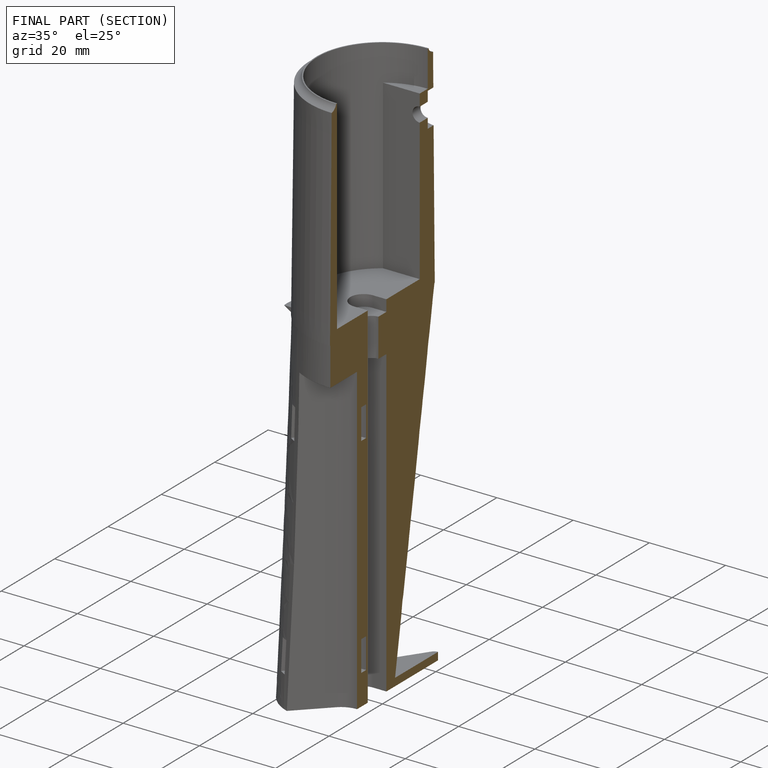
[diagram: finished part — half-section view (interior)]
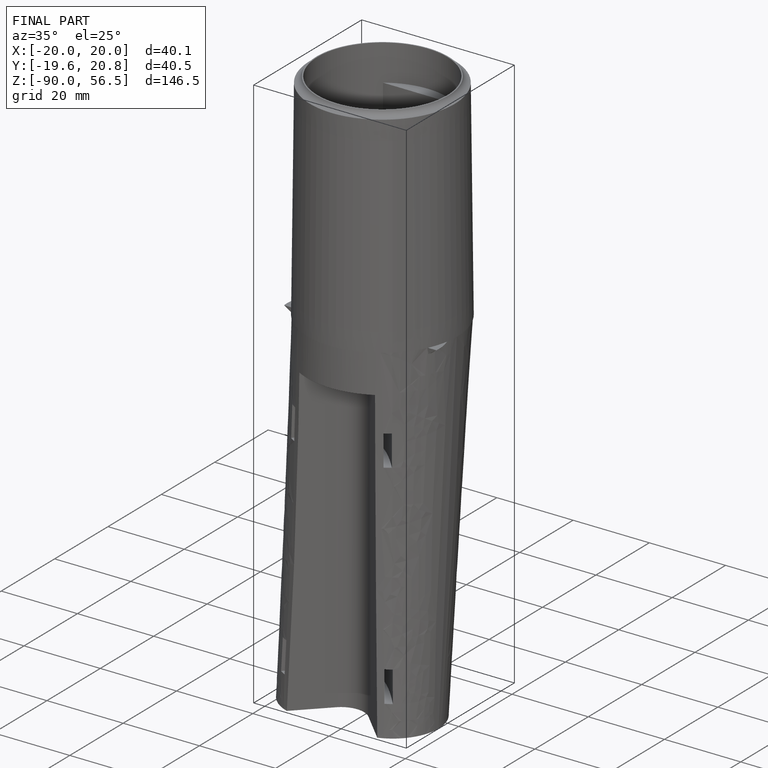
[diagram: finished part — iso view with bounding-box wireframe]
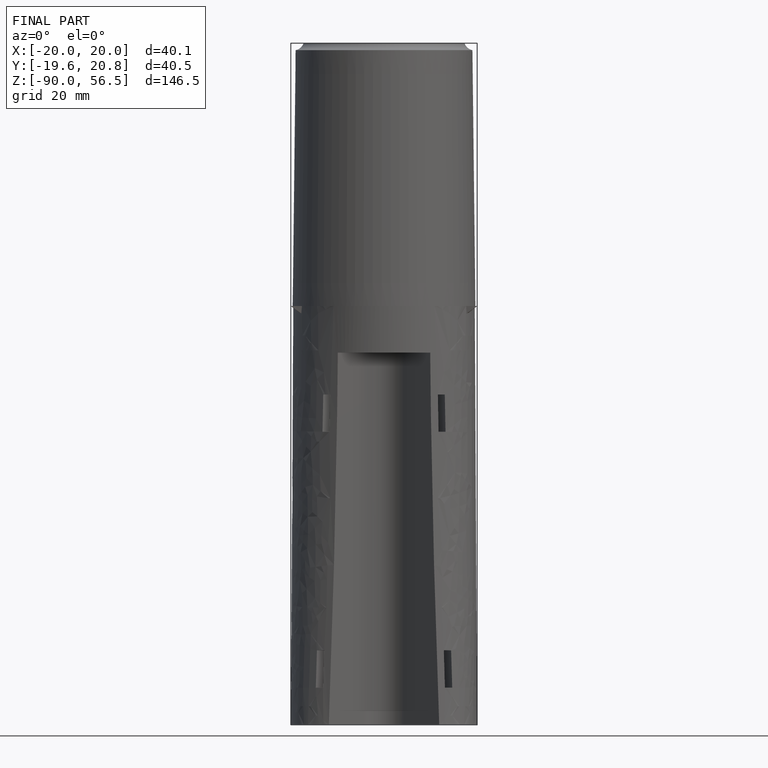
[diagram: finished part — front view with bounding-box wireframe]
